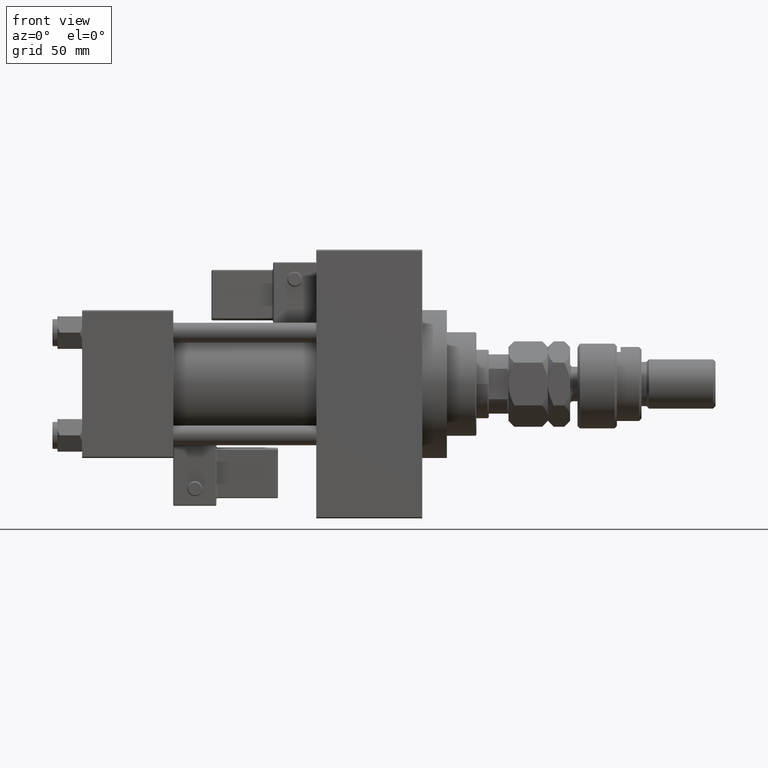
[diagram: clean part render]
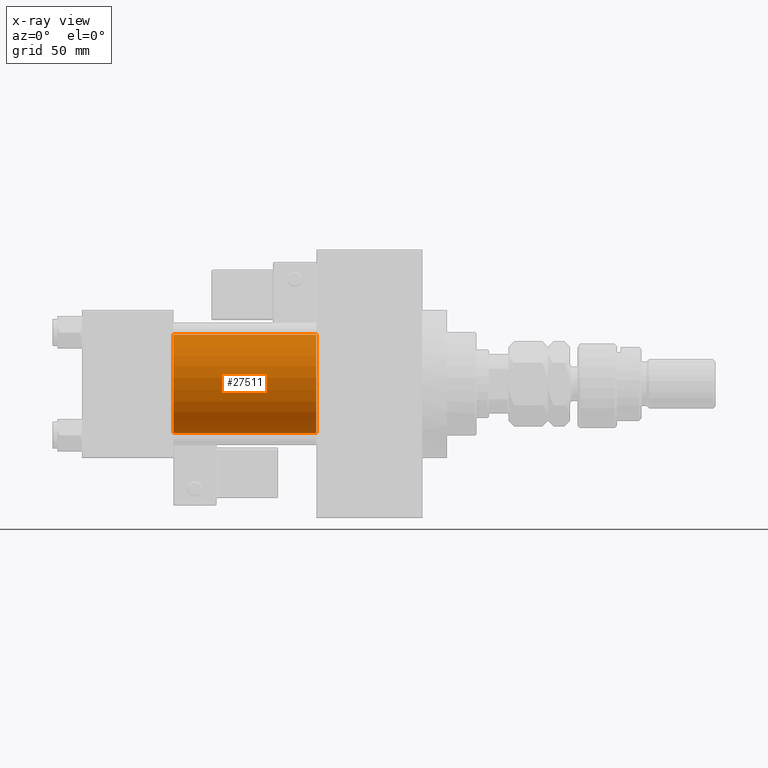
[diagram: x-ray — body ghosted, one internal face saturated and labeled with its STEP entity id]
A machine part, front view, then the same camera in x-ray: the body is ghosted and one INTERNAL B-rep face — a face not visible from any outside direction — is saturated and labeled: STEP entity #27511.
In plain terms, the highlighted cylindrical surface (partial cylindrical patch) has radius 20 mm, axis along (-1, -0, -0).
Its self-contained STEP definition (entity closure, byte-faithful):
#858 = CARTESIAN_POINT ( 'NONE',  ( 37.00000000000000000, -1.527916156705046464E-16, -20.00000000000000000 ) ) ;
#1321 = CARTESIAN_POINT ( 'NONE',  ( 95.00000000000000000, -2.602085213965210642E-15, 20.00000000000000000 ) ) ;
#1501 = VERTEX_POINT ( 'NONE', #26261 ) ;
#1669 = CYLINDRICAL_SURFACE ( 'NONE', #1975, 20.00000000000000000 ) ;
#1951 = DIRECTION ( 'NONE',  ( 1.000000000000000000, 0.000000000000000000, 0.000000000000000000 ) ) ;
#1975 = AXIS2_PLACEMENT_3D ( 'NONE', #29791, #17326, #48249 ) ;
#2338 = CARTESIAN_POINT ( 'NONE',  ( 95.00000000000000000, -1.527916156705046464E-16, -20.00000000000000000 ) ) ;
#4332 = CIRCLE ( 'NONE', #11129, 20.00000000000000000 ) ;
#4868 = FACE_OUTER_BOUND ( 'NONE', #11629, .T. ) ;
#11129 = AXIS2_PLACEMENT_3D ( 'NONE', #24137, #44076, #32353 ) ;
#11629 = EDGE_LOOP ( 'NONE', ( #15922, #39115, #27667, #27879 ) ) ;
#13736 = VERTEX_POINT ( 'NONE', #2338 ) ;
#14547 = EDGE_CURVE ( 'NONE', #1501, #26518, #4332, .T. ) ;
#15922 = ORIENTED_EDGE ( 'NONE', *, *, #45943, .T. ) ;
#17326 = DIRECTION ( 'NONE',  ( -1.000000000000000000, -0.000000000000000000, -0.000000000000000000 ) ) ;
#17852 = EDGE_CURVE ( 'NONE', #13736, #26518, #21628, .T. ) ;
#18685 = VECTOR ( 'NONE', #34373, 1000.000000000000000 ) ;
#21600 = EDGE_CURVE ( 'NONE', #44886, #1501, #37701, .T. ) ;
#21628 = LINE ( 'NONE', #29328, #18685 ) ;
#24137 = CARTESIAN_POINT ( 'NONE',  ( 37.00000000000000000, -2.602085213965210642E-15, 0.000000000000000000 ) ) ;
#26261 = CARTESIAN_POINT ( 'NONE',  ( 37.00000000000000000, -2.602085213965210642E-15, 20.00000000000000000 ) ) ;
#26518 = VERTEX_POINT ( 'NONE', #858 ) ;
#27511 = ADVANCED_FACE ( 'NONE', ( #4868 ), #1669, .F. ) ;
#27667 = ORIENTED_EDGE ( 'NONE', *, *, #14547, .F. ) ;
#27879 = ORIENTED_EDGE ( 'NONE', *, *, #21600, .F. ) ;
#29328 = CARTESIAN_POINT ( 'NONE',  ( 95.00000000000000000, -1.527916156705046464E-16, -20.00000000000000000 ) ) ;
#29603 = AXIS2_PLACEMENT_3D ( 'NONE', #42055, #1951, #42580 ) ;
#29641 = CIRCLE ( 'NONE', #29603, 20.00000000000000000 ) ;
#29791 = CARTESIAN_POINT ( 'NONE',  ( 95.00000000000000000, -2.602085213965210642E-15, 0.000000000000000000 ) ) ;
#32353 = DIRECTION ( 'NONE',  ( 0.000000000000000000, 0.000000000000000000, -1.000000000000000000 ) ) ;
#33708 = DIRECTION ( 'NONE',  ( -1.000000000000000000, -0.000000000000000000, -0.000000000000000000 ) ) ;
#34373 = DIRECTION ( 'NONE',  ( -1.000000000000000000, -0.000000000000000000, -0.000000000000000000 ) ) ;
#35757 = VECTOR ( 'NONE', #33708, 1000.000000000000000 ) ;
#37701 = LINE ( 'NONE', #1321, #35757 ) ;
#39115 = ORIENTED_EDGE ( 'NONE', *, *, #17852, .T. ) ;
#42055 = CARTESIAN_POINT ( 'NONE',  ( 95.00000000000000000, -2.602085213965210642E-15, 0.000000000000000000 ) ) ;
#42580 = DIRECTION ( 'NONE',  ( 0.000000000000000000, 0.000000000000000000, -1.000000000000000000 ) ) ;
#44076 = DIRECTION ( 'NONE',  ( 1.000000000000000000, 0.000000000000000000, 0.000000000000000000 ) ) ;
#44886 = VERTEX_POINT ( 'NONE', #46524 ) ;
#45943 = EDGE_CURVE ( 'NONE', #44886, #13736, #29641, .T. ) ;
#46524 = CARTESIAN_POINT ( 'NONE',  ( 95.00000000000000000, -2.602085213965210642E-15, 20.00000000000000000 ) ) ;
#48249 = DIRECTION ( 'NONE',  ( 0.000000000000000000, 0.000000000000000000, 1.000000000000000000 ) ) ;